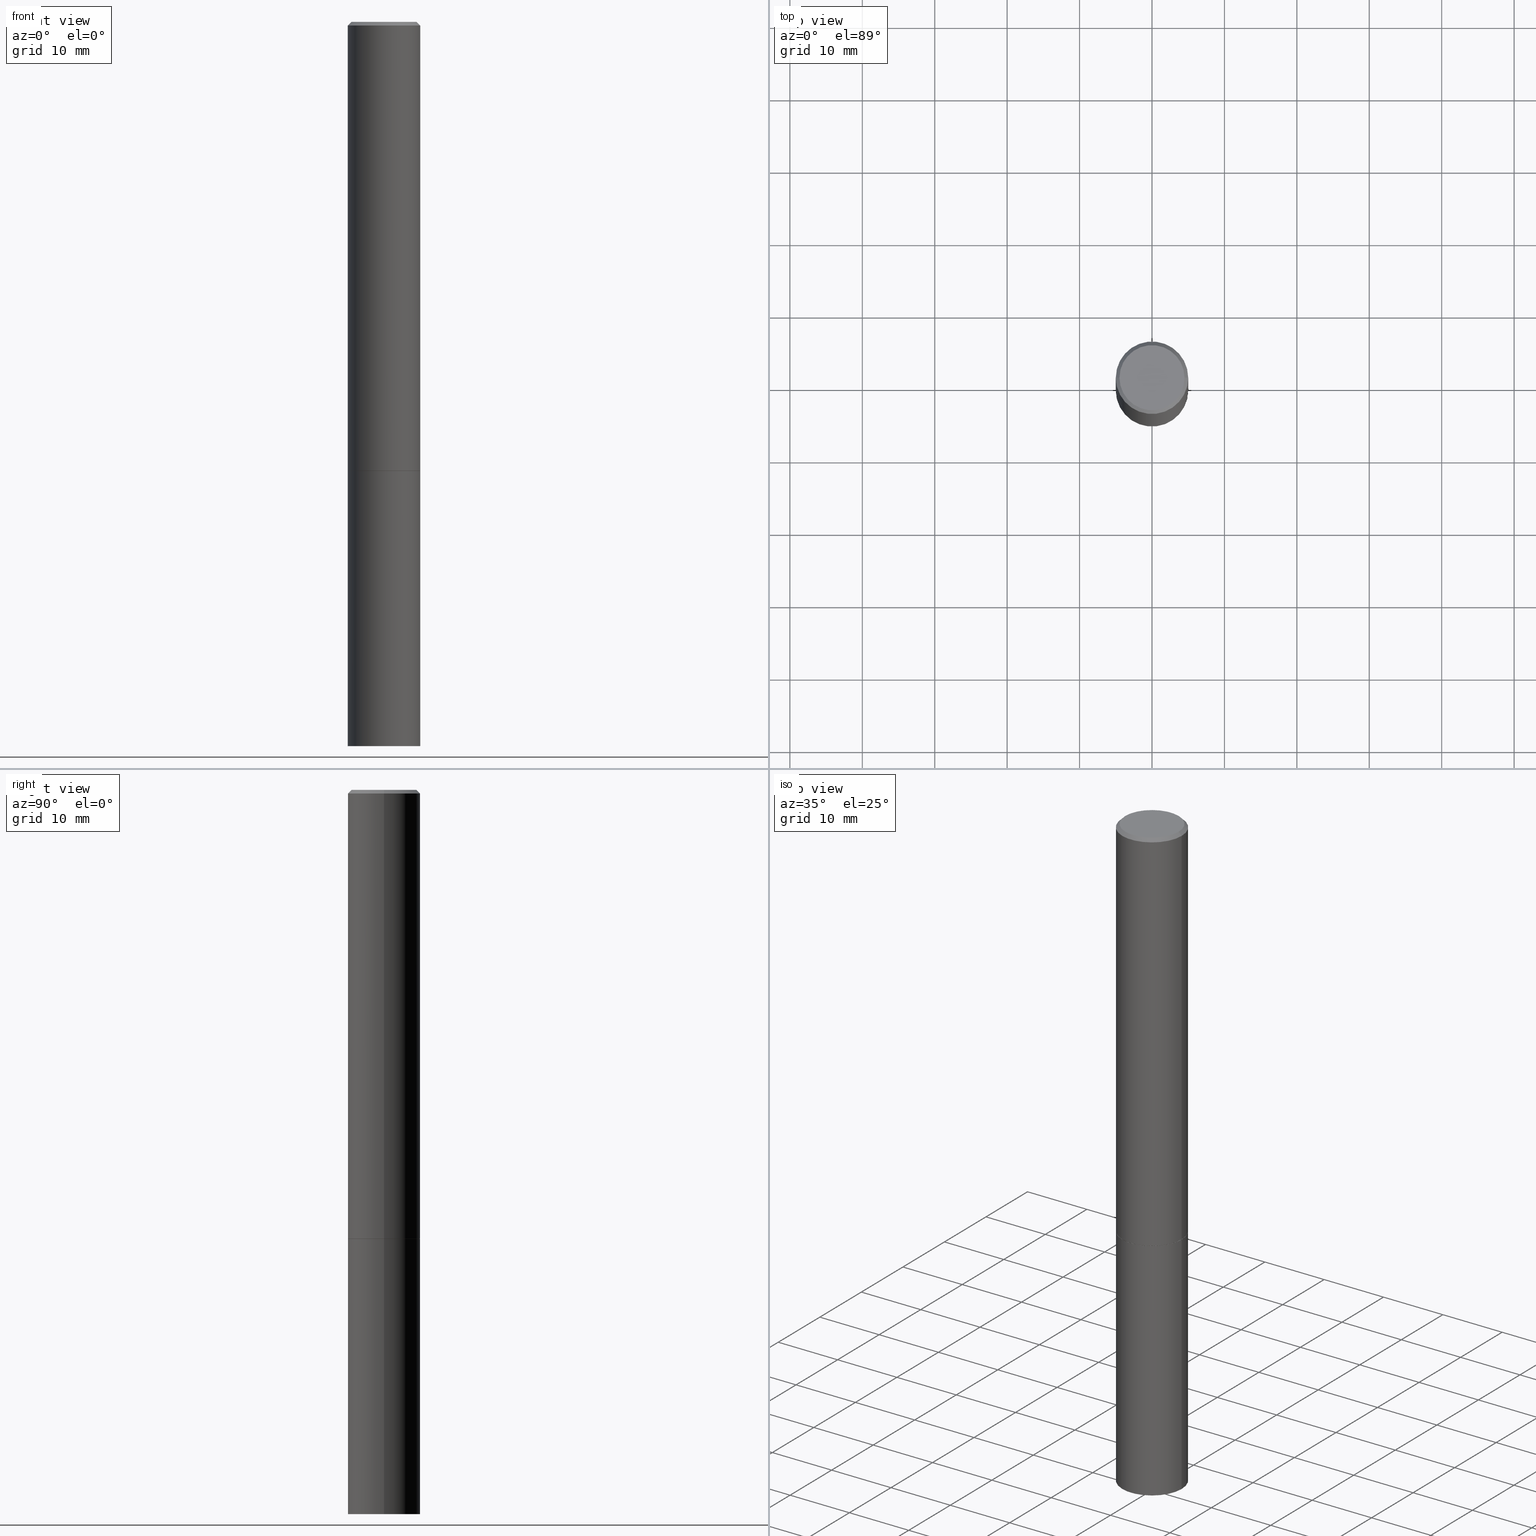
[diagram: canonical four-view strip — front | top / right | iso, engineering-drawing reading convention]
A machine part, canonical four-view strip (front | top / right | iso — engineering-drawing reading convention). The complete STEP part file that produces these views, byte-faithful:
ISO-10303-21;
HEADER;
FILE_DESCRIPTION (( 'STEP AP203' ),
    '1' );
FILE_NAME ('49419.STEP',
    '2024-02-28T20:01:23',
    ( '' ),
    ( '' ),
    'SwSTEP 2.0',
    'SolidWorks 2023',
    '' );
FILE_SCHEMA (( 'CONFIG_CONTROL_DESIGN' ));
ENDSEC;

DATA;
#1 = CARTESIAN_POINT ( 'NONE',  ( 5.966699340211114556E-29, -8.518865318643389958E-15, -2.439899999999999736 ) ) ;
#2 = AXIS2_PLACEMENT_3D ( 'NONE', #78, #16, #188 ) ;
#3 = CARTESIAN_POINT ( 'NONE',  ( 5.969144809017300159E-29, -8.522356799982234543E-15, -2.440900000000000070 ) ) ;
#4 = UNCERTAINTY_MEASURE_WITH_UNIT (LENGTH_MEASURE( 1.000000000000000082E-05 ), #44, 'distance_accuracy_value', 'NONE');
#5 = DIRECTION ( 'NONE',  ( -2.445468806185136597E-29, 3.491481338843145583E-15, 1.000000000000000000 ) ) ;
#6 = CARTESIAN_POINT ( 'NONE',  ( 0.1968499999999996364, -1.420318657638186558E-15, -0.02000000000000002123 ) ) ;
#7 = ORIENTED_EDGE ( 'NONE', *, *, #104, .T. ) ;
#8 = EDGE_CURVE ( 'NONE', #283, #9, #231, .T. ) ;
#9 = VERTEX_POINT ( 'NONE', #83 ) ;
#10 = CC_DESIGN_APPROVAL ( #182, ( #155 ) ) ;
#11 = CARTESIAN_POINT ( 'NONE',  ( 0.1768499999999996464, -1.316798864272039577E-15, 4.268512490109333727E-18 ) ) ;
#12 =( NAMED_UNIT ( * ) PLANE_ANGLE_UNIT ( ) SI_UNIT ( $, .RADIAN. ) );
#13 = AXIS2_PLACEMENT_3D ( 'NONE', #301, #330, #329 ) ;
#14 = EDGE_CURVE ( 'NONE', #209, #23, #259, .T. ) ;
#15 = DIRECTION ( 'NONE',  ( 1.000000000000000000, -6.982962677686266711E-15, 0.000000000000000000 ) ) ;
#16 = DIRECTION ( 'NONE',  ( 2.438088387897960049E-29, -3.491481338843145188E-15, -1.000000000000000000 ) ) ;
#17 = MANIFOLD_SOLID_BREP ( 'Body-Move/Copy2[2]', #32 ) ;
#18 = CC_DESIGN_PERSON_AND_ORGANIZATION_ASSIGNMENT ( #333, #193, ( #349 ) ) ;
#19 = VECTOR ( 'NONE', #201, 39.37007874015748143 ) ;
#20 = DIRECTION ( 'NONE',  ( 2.445468806185136597E-29, -3.491481338843145583E-15, -1.000000000000000000 ) ) ;
#21 = AXIS2_PLACEMENT_3D ( 'NONE', #345, #324, #207 ) ;
#22 = ORIENTED_EDGE ( 'NONE', *, *, #356, .F. ) ;
#23 = VERTEX_POINT ( 'NONE', #361 ) ;
#24 = APPROVAL ( #171, 'UNSPECIFIED' ) ;
#25 = DIRECTION ( 'NONE',  ( -1.000000000000000000, 6.982962677686265922E-15, -4.876176775795935793E-29 ) ) ;
#26 = APPROVAL_PERSON_ORGANIZATION ( #340, #178, #173 ) ;
#27 = CARTESIAN_POINT ( 'NONE',  ( 4.890937612370278413E-31, -6.982962677686297772E-17, -0.02000000000000002123 ) ) ;
#28 = DIRECTION ( 'NONE',  ( 1.000000000000000000, -6.982962677686266711E-15, 4.876176775795935793E-29 ) ) ;
#29 = ADVANCED_FACE ( 'NONE', ( #335 ), #113, .F. ) ;
#30 = CARTESIAN_POINT ( 'NONE',  ( -0.1768499999999996464, 1.269851762937245083E-15, 4.268512490091652920E-18 ) ) ;
#31 = VERTEX_POINT ( 'NONE', #258 ) ;
#32 = CLOSED_SHELL ( 'NONE', ( #109, #200, #84, #51, #45, #254, #160, #29 ) ) ;
#33 = AXIS2_PLACEMENT_3D ( 'NONE', #1, #245, #15 ) ;
#34 = ORIENTED_EDGE ( 'NONE', *, *, #163, .T. ) ;
#35 = DIRECTION ( 'NONE',  ( -1.000000000000000000, 6.982962677686265922E-15, -4.876176775795935793E-29 ) ) ;
#36 = ORIENTED_EDGE ( 'NONE', *, *, #205, .T. ) ;
#37 = DIRECTION ( 'NONE',  ( -2.438088387897960049E-29, 3.491481338843145188E-15, 1.000000000000000000 ) ) ;
#38 = CARTESIAN_POINT ( 'NONE',  ( 4.890937612370278413E-31, -6.982962677686297772E-17, -0.02000000000000002123 ) ) ;
#39 = DESIGN_CONTEXT ( 'detailed design', #186, 'design' ) ;
#40 = DIRECTION ( 'NONE',  ( 1.000000000000000000, -6.982962677686266711E-15, 0.000000000000000000 ) ) ;
#41 = EDGE_CURVE ( 'NONE', #86, #23, #234, .T. ) ;
#42 = CARTESIAN_POINT ( 'NONE',  ( 9.627810689950883669E-29, -1.374596203102546341E-14, -3.937000000000000277 ) ) ;
#43 = DIRECTION ( 'NONE',  ( -2.445468806185136597E-29, 3.491481338843145583E-15, 1.000000000000000000 ) ) ;
#44 =( CONVERSION_BASED_UNIT ( 'INCH', #102 ) LENGTH_UNIT ( ) NAMED_UNIT ( #148 ) );
#45 = ADVANCED_FACE ( 'NONE', ( #255 ), #194, .T. ) ;
#46 = CONICAL_SURFACE ( 'NONE', #99, 0.1958499999999999963, 0.7853981633972946241 ) ;
#47 = CC_DESIGN_SECURITY_CLASSIFICATION ( #313, ( #349 ) ) ;
#48 = ORGANIZATION ( 'UNSPECIFIED', 'UNSPECIFIED', '' ) ;
#49 = PERSON_AND_ORGANIZATION ( #138, #48 ) ;
#50 = APPROVAL_DATE_TIME ( #196, #182 ) ;
#51 = ADVANCED_FACE ( 'NONE', ( #79 ), #124, .T. ) ;
#52 = ORIENTED_EDGE ( 'NONE', *, *, #243, .F. ) ;
#53 = ORIENTED_EDGE ( 'NONE', *, *, #334, .T. ) ;
#54 = CIRCLE ( 'NONE', #21, 0.1968500000000000250 ) ;
#55 = COORDINATED_UNIVERSAL_TIME_OFFSET ( 5, 0, .BEHIND. ) ;
#56 = ORIENTED_EDGE ( 'NONE', *, *, #293, .F. ) ;
#57 = CARTESIAN_POINT ( 'NONE',  ( 5.969144809017299038E-29, -8.522356799982232966E-15, -2.440900000000000070 ) ) ;
#58 = EDGE_LOOP ( 'NONE', ( #36, #344, #172, #179 ) ) ;
#59 = FACE_OUTER_BOUND ( 'NONE', #143, .T. ) ;
#60 = VERTEX_POINT ( 'NONE', #108 ) ;
#61 = PRODUCT_DEFINITION_SHAPE ( 'NONE', 'NONE',  #155 ) ;
#62 = ORIENTED_EDGE ( 'NONE', *, *, #213, .F. ) ;
#63 = DIRECTION ( 'NONE',  ( -2.445468806185136877E-29, 3.491481338843145188E-15, 1.000000000000000000 ) ) ;
#64 = VERTEX_POINT ( 'NONE', #192 ) ;
#65 = AXIS2_PLACEMENT_3D ( 'NONE', #203, #261, #350 ) ;
#66 = CARTESIAN_POINT ( 'NONE',  ( 1.374596203102637849E-15, 0.1968499999999862582, -3.937000000000000721 ) ) ;
#67 = VERTEX_POINT ( 'NONE', #303 ) ;
#68 = ADVANCED_FACE ( 'NONE', ( #80 ), #363, .T. ) ;
#69 = LINE ( 'NONE', #341, #137 ) ;
#70 = EDGE_LOOP ( 'NONE', ( #230, #347 ) ) ;
#71 = PERSON_AND_ORGANIZATION ( #138, #48 ) ;
#72 = AXIS2_PLACEMENT_3D ( 'NONE', #57, #5, #322 ) ;
#73 = PLANE ( 'NONE',  #2 ) ;
#74 = CARTESIAN_POINT ( 'NONE',  ( 4.890937612370278413E-31, -6.982962677686297772E-17, -0.02000000000000002123 ) ) ;
#75 = PERSON_AND_ORGANIZATION ( #138, #48 ) ;
#76 = AXIS2_PLACEMENT_3D ( 'NONE', #229, #311, #278 ) ;
#77 = EDGE_CURVE ( 'NONE', #60, #31, #312, .T. ) ;
#78 = CARTESIAN_POINT ( 'NONE',  ( 1.374596203102601167E-15, 0.1968499999999914762, -2.440900000000000514 ) ) ;
#79 = FACE_OUTER_BOUND ( 'NONE', #280, .T. ) ;
#80 = FACE_OUTER_BOUND ( 'NONE', #139, .T. ) ;
#81 = COORDINATED_UNIVERSAL_TIME_OFFSET ( 5, 0, .BEHIND. ) ;
#82 = AXIS2_PLACEMENT_3D ( 'NONE', #176, #237, #28 ) ;
#83 = CARTESIAN_POINT ( 'NONE',  ( 0.1968500000000000527, -9.893461521745931567E-15, -2.439899999999999736 ) ) ;
#84 = ADVANCED_FACE ( 'NONE', ( #118 ), #168, .T. ) ;
#85 = PERSON_AND_ORGANIZATION_ROLE ( 'classification_officer' ) ;
#86 = VERTEX_POINT ( 'NONE', #30 ) ;
#87 = EDGE_LOOP ( 'NONE', ( #289, #7, #150, #240 ) ) ;
#88 = CC_DESIGN_DATE_AND_TIME_ASSIGNMENT ( #360, #140, ( #155 ) ) ;
#89 = LINE ( 'NONE', #147, #225 ) ;
#90 = CC_DESIGN_APPROVAL ( #178, ( #349 ) ) ;
#91 = FACE_OUTER_BOUND ( 'NONE', #177, .T. ) ;
#92 = DIRECTION ( 'NONE',  ( -2.445468806185136597E-29, 3.491481338843145583E-15, 1.000000000000000000 ) ) ;
#93 = CARTESIAN_POINT ( 'NONE',  ( 5.969144809017300159E-29, -8.522356799982234543E-15, -2.440900000000000070 ) ) ;
#94 = EDGE_CURVE ( 'NONE', #31, #60, #249, .T. ) ;
#95 = ADVANCED_BREP_SHAPE_REPRESENTATION ( '49419', ( #274, #17, #13 ), #328 ) ;
#96 = DIRECTION ( 'NONE',  ( -2.445468806185136597E-29, 3.491481338843145583E-15, 1.000000000000000000 ) ) ;
#97 = ORIENTED_EDGE ( 'NONE', *, *, #248, .T. ) ;
#98 = DIRECTION ( 'NONE',  ( -2.445468806185136597E-29, 3.491481338843145583E-15, 1.000000000000000000 ) ) ;
#99 = AXIS2_PLACEMENT_3D ( 'NONE', #114, #96, #288 ) ;
#100 = LOCAL_TIME ( 15, 1, 23.00000000000000000, #55 ) ;
#101 = PERSON_AND_ORGANIZATION ( #138, #48 ) ;
#102 = LENGTH_MEASURE_WITH_UNIT ( LENGTH_MEASURE( 0.02539999999999999897 ), #331 );
#103 = CALENDAR_DATE ( 2024, 28, 2 ) ;
#104 = EDGE_CURVE ( 'NONE', #67, #283, #116, .T. ) ;
#105 = AXIS2_PLACEMENT_3D ( 'NONE', #136, #110, #167 ) ;
#106 = LOCAL_TIME ( 15, 1, 23.00000000000000000, #260 ) ;
#107 = APPROVAL_DATE_TIME ( #132, #178 ) ;
#108 = CARTESIAN_POINT ( 'NONE',  ( 0.1968500000000000250, -9.896953003084774574E-15, -2.440900000000000070 ) ) ;
#109 = ADVANCED_FACE ( 'NONE', ( #174 ), #46, .T. ) ;
#110 = DIRECTION ( 'NONE',  ( -2.445468806185136597E-29, 3.491481338843145583E-15, 1.000000000000000000 ) ) ;
#111 = CIRCLE ( 'NONE', #220, 0.1768499999999996464 ) ;
#112 = APPROVAL_ROLE ( '' ) ;
#113 = PLANE ( 'NONE',  #210 ) ;
#114 = CARTESIAN_POINT ( 'NONE',  ( 5.969144809017300159E-29, -8.522356799982234543E-15, -2.440900000000000070 ) ) ;
#115 = CYLINDRICAL_SURFACE ( 'NONE', #82, 0.1968499999999998307 ) ;
#116 = CIRCLE ( 'NONE', #326, 0.1958499999999999963 ) ;
#117 = AXIS2_PLACEMENT_3D ( 'NONE', #299, #43, #277 ) ;
#118 = FACE_OUTER_BOUND ( 'NONE', #166, .T. ) ;
#119 = DIRECTION ( 'NONE',  ( -2.445468806185136877E-29, 3.491481338843145188E-15, 1.000000000000000000 ) ) ;
#120 = CC_DESIGN_PERSON_AND_ORGANIZATION_ASSIGNMENT ( #75, #228, ( #349 ) ) ;
#121 = ORIENTED_EDGE ( 'NONE', *, *, #285, .T. ) ;
#122 = DIRECTION ( 'NONE',  ( 0.7071067811865469066, -7.319954787623254468E-15, -0.7071067811865481278 ) ) ;
#123 = EDGE_LOOP ( 'NONE', ( #265, #22 ) ) ;
#124 = CONICAL_SURFACE ( 'NONE', #332, 0.1968499999999996364, 0.7853981633974473908 ) ;
#125 = APPLICATION_PROTOCOL_DEFINITION ( 'international standard', 'config_control_design', 1994, #222 ) ;
#126 = CC_DESIGN_PERSON_AND_ORGANIZATION_ASSIGNMENT ( #49, #85, ( #313 ) ) ;
#127 = DIRECTION ( 'NONE',  ( -2.445468806185136597E-29, 3.491481338843145583E-15, 1.000000000000000000 ) ) ;
#128 = MECHANICAL_CONTEXT ( 'NONE', #222, 'mechanical' ) ;
#129 = CIRCLE ( 'NONE', #337, 0.1958499999999999963 ) ;
#130 = DIRECTION ( 'NONE',  ( -2.445468806185136597E-29, 3.491481338843145583E-15, 1.000000000000000000 ) ) ;
#131 = DIRECTION ( 'NONE',  ( -2.445468806185136597E-29, 3.491481338843145583E-15, 1.000000000000000000 ) ) ;
#132 = DATE_AND_TIME ( #103, #106 ) ;
#133 = APPROVAL_PERSON_ORGANIZATION ( #315, #24, #263 ) ;
#134 = ORIENTED_EDGE ( 'NONE', *, *, #351, .F. ) ;
#135 = DIRECTION ( 'NONE',  ( 0.7071067811864388819, -2.468850131081119129E-15, 0.7071067811866561525 ) ) ;
#136 = CARTESIAN_POINT ( 'NONE',  ( 0.000000000000000000, 0.000000000000000000, 0.000000000000000000 ) ) ;
#137 = VECTOR ( 'NONE', #119, 39.37007874015748143 ) ;
#138 = PERSON ( 'UNSPECIFIED', 'UNSPECIFIED', 'UNSPECIFIED', ('UNSPECIFIED'), ('UNSPECIFIED'), ('UNSPECIFIED') ) ;
#139 = EDGE_LOOP ( 'NONE', ( #62, #271, #319, #292 ) ) ;
#140 = DATE_TIME_ROLE ( 'creation_date' ) ;
#141 = DIRECTION ( 'NONE',  ( 2.438088387897960049E-29, -3.491481338843145188E-15, -1.000000000000000000 ) ) ;
#142 = CALENDAR_DATE ( 2024, 28, 2 ) ;
#143 = EDGE_LOOP ( 'NONE', ( #242, #336 ) ) ;
#144 = DIRECTION ( 'NONE',  ( 1.000000000000000000, -6.982962677686262766E-15, 0.000000000000000000 ) ) ;
#145 = ORIENTED_EDGE ( 'NONE', *, *, #8, .F. ) ;
#146 = EDGE_CURVE ( 'NONE', #153, #60, #264, .T. ) ;
#147 = CARTESIAN_POINT ( 'NONE',  ( 0.1968499999999998307, -1.374596203102540425E-15, 9.598753983154291049E-30 ) ) ;
#148 = DIMENSIONAL_EXPONENTS ( 1.000000000000000000, 0.000000000000000000, 0.000000000000000000, 0.000000000000000000, 0.000000000000000000, 0.000000000000000000, 0.000000000000000000 ) ;
#149 = DIRECTION ( 'NONE',  ( -2.445468806185136597E-29, 3.491481338843145583E-15, 1.000000000000000000 ) ) ;
#150 = ORIENTED_EDGE ( 'NONE', *, *, #8, .T. ) ;
#151 = ORIENTED_EDGE ( 'NONE', *, *, #226, .T. ) ;
#152 = CARTESIAN_POINT ( 'NONE',  ( 0.1968500000000000250, -1.374596203102541608E-15, 9.598753983154300858E-30 ) ) ;
#153 = VERTEX_POINT ( 'NONE', #348 ) ;
#154 = AXIS2_PLACEMENT_3D ( 'NONE', #282, #92, #316 ) ;
#155 = PRODUCT_DEFINITION ( 'UNKNOWN', '', #349, #39 ) ;
#156 = CONICAL_SURFACE ( 'NONE', #65, 0.1958499999999999963, 0.7853981633972946241 ) ;
#157 = CARTESIAN_POINT ( 'NONE',  ( 4.890937612370278413E-31, -6.982962677686297772E-17, -0.02000000000000002123 ) ) ;
#158 = APPROVAL_STATUS ( 'not_yet_approved' ) ;
#159 = CLOSED_SHELL ( 'NONE', ( #346, #221, #320, #68 ) ) ;
#160 = ADVANCED_FACE ( 'NONE', ( #59 ), #343, .F. ) ;
#161 = CALENDAR_DATE ( 2024, 28, 2 ) ;
#162 = ORIENTED_EDGE ( 'NONE', *, *, #226, .F. ) ;
#163 = EDGE_CURVE ( 'NONE', #283, #67, #129, .T. ) ;
#164 = AXIS2_PLACEMENT_3D ( 'NONE', #38, #266, #314 ) ;
#165 = AXIS2_PLACEMENT_3D ( 'NONE', #66, #141, #35 ) ;
#166 = EDGE_LOOP ( 'NONE', ( #134, #97, #325, #323 ) ) ;
#167 = DIRECTION ( 'NONE',  ( 1.000000000000000000, -6.982962677686265922E-15, 4.876176775795935793E-29 ) ) ;
#168 = CONICAL_SURFACE ( 'NONE', #164, 0.1968499999999996364, 0.7853981633974473908 ) ;
#169 = CIRCLE ( 'NONE', #279, 0.1768499999999996464 ) ;
#170 = ORIENTED_EDGE ( 'NONE', *, *, #334, .F. ) ;
#171 = APPROVAL_STATUS ( 'not_yet_approved' ) ;
#172 = ORIENTED_EDGE ( 'NONE', *, *, #77, .F. ) ;
#173 = APPROVAL_ROLE ( '' ) ;
#174 = FACE_OUTER_BOUND ( 'NONE', #175, .T. ) ;
#175 = EDGE_LOOP ( 'NONE', ( #34, #236, #223, #145 ) ) ;
#176 = CARTESIAN_POINT ( 'NONE',  ( 0.000000000000000000, 0.000000000000000000, 0.000000000000000000 ) ) ;
#177 = EDGE_LOOP ( 'NONE', ( #212, #267, #56, #162 ) ) ;
#178 = APPROVAL ( #202, 'UNSPECIFIED' ) ;
#179 = ORIENTED_EDGE ( 'NONE', *, *, #146, .F. ) ;
#180 = FACE_OUTER_BOUND ( 'NONE', #123, .T. ) ;
#181 = CIRCLE ( 'NONE', #276, 0.1968499999999996364 ) ;
#182 = APPROVAL ( #158, 'UNSPECIFIED' ) ;
#183 = PLANE ( 'NONE',  #165 ) ;
#184 = ORIENTED_EDGE ( 'NONE', *, *, #41, .T. ) ;
#185 = FACE_OUTER_BOUND ( 'NONE', #238, .T. ) ;
#186 = APPLICATION_CONTEXT ( 'configuration controlled 3d designs of mechanical parts and assemblies' ) ;
#187 = LINE ( 'NONE', #327, #338 ) ;
#188 = DIRECTION ( 'NONE',  ( -1.000000000000000000, 6.982962677686265922E-15, -4.876176775795935793E-29 ) ) ;
#189 = CC_DESIGN_PERSON_AND_ORGANIZATION_ASSIGNMENT ( #71, #272, ( #208 ) ) ;
#190 = VECTOR ( 'NONE', #307, 39.37007874015748143 ) ;
#191 = PERSON_AND_ORGANIZATION_ROLE ( 'creator' ) ;
#192 = CARTESIAN_POINT ( 'NONE',  ( -0.1968500000000000250, -9.735456040160091980E-15, -3.937000000000000277 ) ) ;
#193 = PERSON_AND_ORGANIZATION_ROLE ( 'design_supplier' ) ;
#194 = CYLINDRICAL_SURFACE ( 'NONE', #76, 0.1968499999999998307 ) ;
#195 = APPROVAL_DATE_TIME ( #253, #24 ) ;
#196 = DATE_AND_TIME ( #233, #257 ) ;
#197 = DIRECTION ( 'NONE',  ( 2.438088387897960049E-29, -3.491481338843145188E-15, -1.000000000000000000 ) ) ;
#198 = ORIENTED_EDGE ( 'NONE', *, *, #94, .T. ) ;
#199 = COORDINATED_UNIVERSAL_TIME_OFFSET ( 5, 0, .BEHIND. ) ;
#200 = ADVANCED_FACE ( 'NONE', ( #91 ), #115, .T. ) ;
#201 = DIRECTION ( 'NONE',  ( -0.7071067811865469066, 2.468850131082250355E-15, -0.7071067811865481278 ) ) ;
#202 = APPROVAL_STATUS ( 'not_yet_approved' ) ;
#203 = CARTESIAN_POINT ( 'NONE',  ( 5.969144809017300159E-29, -8.522356799982234543E-15, -2.440900000000000070 ) ) ;
#204 = DATE_TIME_ROLE ( 'classification_date' ) ;
#205 = EDGE_CURVE ( 'NONE', #153, #64, #54, .T. ) ;
#206 = ORIENTED_EDGE ( 'NONE', *, *, #248, .F. ) ;
#207 = DIRECTION ( 'NONE',  ( 1.000000000000000000, -6.982962677686267499E-15, 0.000000000000000000 ) ) ;
#208 = PRODUCT ( '49419', '49419', '', ( #128 ) ) ;
#209 = VERTEX_POINT ( 'NONE', #318 ) ;
#210 = AXIS2_PLACEMENT_3D ( 'NONE', #227, #197, #25 ) ;
#211 = CARTESIAN_POINT ( 'NONE',  ( 0.1968499999999996364, -1.420318657638186558E-15, -0.02000000000000002123 ) ) ;
#212 = ORIENTED_EDGE ( 'NONE', *, *, #281, .T. ) ;
#213 = EDGE_CURVE ( 'NONE', #64, #31, #69, .T. ) ;
#214 = DIRECTION ( 'NONE',  ( 1.000000000000000000, -6.982962677686265922E-15, 4.876176775795935793E-29 ) ) ;
#215 = VERTEX_POINT ( 'NONE', #211 ) ;
#216 = DIRECTION ( 'NONE',  ( 1.000000000000000000, -6.982962677686267499E-15, 0.000000000000000000 ) ) ;
#217 = ORIENTED_EDGE ( 'NONE', *, *, #14, .F. ) ;
#218 = DIRECTION ( 'NONE',  ( 1.000000000000000000, -6.982962677686266711E-15, 4.875932113059887537E-29 ) ) ;
#219 = CC_DESIGN_APPROVAL ( #24, ( #313 ) ) ;
#220 = AXIS2_PLACEMENT_3D ( 'NONE', #352, #131, #218 ) ;
#221 = ADVANCED_FACE ( 'NONE', ( #180 ), #183, .T. ) ;
#222 = APPLICATION_CONTEXT ( 'configuration controlled 3d designs of mechanical parts and assemblies' ) ;
#223 = ORIENTED_EDGE ( 'NONE', *, *, #281, .F. ) ;
#224 = FACE_OUTER_BOUND ( 'NONE', #58, .T. ) ;
#225 = VECTOR ( 'NONE', #295, 39.37007874015748143 ) ;
#226 = EDGE_CURVE ( 'NONE', #9, #215, #89, .T. ) ;
#227 = CARTESIAN_POINT ( 'NONE',  ( 1.234936949548813631E-15, 0.1768499999999996464, -6.153342185293588703E-16 ) ) ;
#228 = PERSON_AND_ORGANIZATION_ROLE ( 'creator' ) ;
#229 = CARTESIAN_POINT ( 'NONE',  ( 0.000000000000000000, 0.000000000000000000, 0.000000000000000000 ) ) ;
#230 = ORIENTED_EDGE ( 'NONE', *, *, #243, .T. ) ;
#231 = LINE ( 'NONE', #339, #364 ) ;
#232 = CC_DESIGN_PERSON_AND_ORGANIZATION_ASSIGNMENT ( #309, #191, ( #155 ) ) ;
#233 = CALENDAR_DATE ( 2024, 28, 2 ) ;
#234 = LINE ( 'NONE', #365, #19 ) ;
#235 = LINE ( 'NONE', #6, #290 ) ;
#236 = ORIENTED_EDGE ( 'NONE', *, *, #310, .T. ) ;
#237 = DIRECTION ( 'NONE',  ( -2.445468806185136597E-29, 3.491481338843145583E-15, 1.000000000000000000 ) ) ;
#238 = EDGE_LOOP ( 'NONE', ( #262, #198 ) ) ;
#239 = CARTESIAN_POINT ( 'NONE',  ( 5.969144809017300159E-29, -8.522356799982234543E-15, -2.440900000000000070 ) ) ;
#240 = ORIENTED_EDGE ( 'NONE', *, *, #285, .F. ) ;
#241 = FACE_OUTER_BOUND ( 'NONE', #87, .T. ) ;
#242 = ORIENTED_EDGE ( 'NONE', *, *, #163, .F. ) ;
#243 = EDGE_CURVE ( 'NONE', #86, #304, #169, .T. ) ;
#244 = DIRECTION ( 'NONE',  ( 1.000000000000000000, -6.982962677686266711E-15, 0.000000000000000000 ) ) ;
#245 = DIRECTION ( 'NONE',  ( -2.445468806185136597E-29, 3.491481338843145583E-15, 1.000000000000000000 ) ) ;
#246 = VECTOR ( 'NONE', #63, 39.37007874015748143 ) ;
#247 = DIRECTION ( 'NONE',  ( -0.7071067811864388819, 7.493145998869961307E-15, 0.7071067811866561525 ) ) ;
#248 = EDGE_CURVE ( 'NONE', #304, #215, #235, .T. ) ;
#249 = CIRCLE ( 'NONE', #72, 0.1968500000000000250 ) ;
#250 = CIRCLE ( 'NONE', #33, 0.1968500000000000527 ) ;
#251 = CARTESIAN_POINT ( 'NONE',  ( -0.1968499999999998307, 1.398703375343756013E-15, -9.682923725166775270E-30 ) ) ;
#252 = DIRECTION ( 'NONE',  ( -1.000000000000000000, 6.982962677686266711E-15, 0.000000000000000000 ) ) ;
#253 = DATE_AND_TIME ( #286, #100 ) ;
#254 = ADVANCED_FACE ( 'NONE', ( #241 ), #156, .T. ) ;
#255 = FACE_OUTER_BOUND ( 'NONE', #317, .T. ) ;
#256 = SHAPE_DEFINITION_REPRESENTATION ( #61, #95 ) ;
#257 = LOCAL_TIME ( 15, 1, 23.00000000000000000, #81 ) ;
#258 = CARTESIAN_POINT ( 'NONE',  ( -0.1968500000000000250, -9.735456040160091980E-15, -2.440900000000000070 ) ) ;
#259 = LINE ( 'NONE', #251, #190 ) ;
#260 = COORDINATED_UNIVERSAL_TIME_OFFSET ( 5, 0, .BEHIND. ) ;
#261 = DIRECTION ( 'NONE',  ( -2.445468806185136597E-29, 3.491481338843145583E-15, 1.000000000000000000 ) ) ;
#262 = ORIENTED_EDGE ( 'NONE', *, *, #77, .T. ) ;
#263 = APPROVAL_ROLE ( '' ) ;
#264 = LINE ( 'NONE', #152, #246 ) ;
#265 = ORIENTED_EDGE ( 'NONE', *, *, #205, .F. ) ;
#266 = DIRECTION ( 'NONE',  ( 2.445468806185136597E-29, -3.491481338843145583E-15, -1.000000000000000000 ) ) ;
#267 = ORIENTED_EDGE ( 'NONE', *, *, #14, .T. ) ;
#268 = DIRECTION ( 'NONE',  ( 1.000000000000000000, -6.982962677686266711E-15, 4.875932113059887537E-29 ) ) ;
#269 = DIRECTION ( 'NONE',  ( -2.445468806185136597E-29, 3.491481338843145583E-15, 1.000000000000000000 ) ) ;
#270 = AXIS2_PLACEMENT_3D ( 'NONE', #42, #98, #216 ) ;
#271 = ORIENTED_EDGE ( 'NONE', *, *, #356, .T. ) ;
#272 = PERSON_AND_ORGANIZATION_ROLE ( 'design_owner' ) ;
#273 = DIRECTION ( 'NONE',  ( 1.000000000000000000, -6.982962677686265922E-15, 4.876176775795935793E-29 ) ) ;
#274 = MANIFOLD_SOLID_BREP ( 'Body-Move/Copy2[1]', #159 ) ;
#275 = DIRECTION ( 'NONE',  ( -2.445468806185136597E-29, 3.491481338843145583E-15, 1.000000000000000000 ) ) ;
#276 = AXIS2_PLACEMENT_3D ( 'NONE', #157, #127, #40 ) ;
#277 = DIRECTION ( 'NONE',  ( 1.000000000000000000, -6.982962677686266711E-15, 0.000000000000000000 ) ) ;
#278 = DIRECTION ( 'NONE',  ( 1.000000000000000000, -6.982962677686266711E-15, 4.876176775795935793E-29 ) ) ;
#279 = AXIS2_PLACEMENT_3D ( 'NONE', #294, #149, #268 ) ;
#280 = EDGE_LOOP ( 'NONE', ( #206, #52, #184, #53 ) ) ;
#281 = EDGE_CURVE ( 'NONE', #9, #209, #250, .T. ) ;
#282 = CARTESIAN_POINT ( 'NONE',  ( 5.969144809017299038E-29, -8.522356799982232966E-15, -2.440900000000000070 ) ) ;
#283 = VERTEX_POINT ( 'NONE', #355 ) ;
#284 = CIRCLE ( 'NONE', #270, 0.1968500000000000250 ) ;
#285 = EDGE_CURVE ( 'NONE', #209, #9, #354, .T. ) ;
#286 = CALENDAR_DATE ( 2024, 28, 2 ) ;
#287 = DIRECTION ( 'NONE',  ( -2.445468806185136597E-29, 3.491481338843145583E-15, 1.000000000000000000 ) ) ;
#288 = DIRECTION ( 'NONE',  ( 1.000000000000000000, -6.982962677686262766E-15, 0.000000000000000000 ) ) ;
#289 = ORIENTED_EDGE ( 'NONE', *, *, #310, .F. ) ;
#290 = VECTOR ( 'NONE', #122, 39.37007874015748143 ) ;
#291 = DIRECTION ( 'NONE',  ( 1.000000000000000000, -6.982962677686262766E-15, 0.000000000000000000 ) ) ;
#292 = ORIENTED_EDGE ( 'NONE', *, *, #94, .F. ) ;
#293 = EDGE_CURVE ( 'NONE', #215, #23, #342, .T. ) ;
#294 = CARTESIAN_POINT ( 'NONE',  ( -1.043851414335219820E-46, 1.490343170380447200E-32, 4.268512490100411279E-18 ) ) ;
#295 = DIRECTION ( 'NONE',  ( -2.445468806185136877E-29, 3.491481338843145188E-15, 1.000000000000000000 ) ) ;
#296 =( NAMED_UNIT ( * ) SI_UNIT ( $, .STERADIAN. ) SOLID_ANGLE_UNIT ( ) );
#297 = AXIS2_PLACEMENT_3D ( 'NONE', #74, #275, #244 ) ;
#298 = CARTESIAN_POINT ( 'NONE',  ( 0.000000000000000000, 0.000000000000000000, 0.000000000000000000 ) ) ;
#299 = CARTESIAN_POINT ( 'NONE',  ( 5.966699340211114556E-29, -8.518865318643389958E-15, -2.439899999999999736 ) ) ;
#300 = LOCAL_TIME ( 15, 1, 23.00000000000000000, #302 ) ;
#301 = CARTESIAN_POINT ( 'NONE',  ( 0.000000000000000000, 0.000000000000000000, 0.000000000000000000 ) ) ;
#302 = COORDINATED_UNIVERSAL_TIME_OFFSET ( 5, 0, .BEHIND. ) ;
#303 = CARTESIAN_POINT ( 'NONE',  ( -0.1958499999999999963, -7.125460397647855362E-15, -2.440900000000000070 ) ) ;
#304 = VERTEX_POINT ( 'NONE', #11 ) ;
#305 = AXIS2_PLACEMENT_3D ( 'NONE', #93, #37, #214 ) ;
#306 = AXIS2_PLACEMENT_3D ( 'NONE', #298, #130, #273 ) ;
#307 = DIRECTION ( 'NONE',  ( -2.445468806185136877E-29, 3.491481338843145188E-15, 1.000000000000000000 ) ) ;
#308 = DATE_AND_TIME ( #142, #358 ) ;
#309 = PERSON_AND_ORGANIZATION ( #138, #48 ) ;
#310 = EDGE_CURVE ( 'NONE', #67, #209, #187, .T. ) ;
#311 = DIRECTION ( 'NONE',  ( -2.445468806185136597E-29, 3.491481338843145583E-15, 1.000000000000000000 ) ) ;
#312 = CIRCLE ( 'NONE', #154, 0.1968500000000000250 ) ;
#313 = SECURITY_CLASSIFICATION ( '', '', #362 ) ;
#314 = DIRECTION ( 'NONE',  ( -1.000000000000000000, 6.982962677686266711E-15, 0.000000000000000000 ) ) ;
#315 = PERSON_AND_ORGANIZATION ( #138, #48 ) ;
#316 = DIRECTION ( 'NONE',  ( 1.000000000000000000, -6.982962677686262766E-15, 0.000000000000000000 ) ) ;
#317 = EDGE_LOOP ( 'NONE', ( #217, #121, #151, #170 ) ) ;
#318 = CARTESIAN_POINT ( 'NONE',  ( -0.1968500000000000527, -2.895644097366364896E-15, -2.439899999999999736 ) ) ;
#319 = ORIENTED_EDGE ( 'NONE', *, *, #146, .T. ) ;
#320 = ADVANCED_FACE ( 'NONE', ( #185 ), #73, .F. ) ;
#321 = APPROVAL_PERSON_ORGANIZATION ( #101, #182, #112 ) ;
#322 = DIRECTION ( 'NONE',  ( 1.000000000000000000, -6.982962677686262766E-15, 0.000000000000000000 ) ) ;
#323 = ORIENTED_EDGE ( 'NONE', *, *, #41, .F. ) ;
#324 = DIRECTION ( 'NONE',  ( -2.445468806185136597E-29, 3.491481338843145583E-15, 1.000000000000000000 ) ) ;
#325 = ORIENTED_EDGE ( 'NONE', *, *, #293, .T. ) ;
#326 = AXIS2_PLACEMENT_3D ( 'NONE', #239, #287, #144 ) ;
#327 = CARTESIAN_POINT ( 'NONE',  ( -0.1958499999999999963, -7.130758851996077764E-15, -2.440900000000000070 ) ) ;
#328 =( GEOMETRIC_REPRESENTATION_CONTEXT ( 3 ) GLOBAL_UNCERTAINTY_ASSIGNED_CONTEXT ( ( #4 ) ) GLOBAL_UNIT_ASSIGNED_CONTEXT ( ( #44, #12, #296 ) ) REPRESENTATION_CONTEXT ( 'NONE', 'WORKASPACE' ) );
#329 = DIRECTION ( 'NONE',  ( 1.000000000000000000, 0.000000000000000000, 0.000000000000000000 ) ) ;
#330 = DIRECTION ( 'NONE',  ( 0.000000000000000000, 0.000000000000000000, 1.000000000000000000 ) ) ;
#331 =( LENGTH_UNIT ( ) NAMED_UNIT ( * ) SI_UNIT ( $, .METRE. ) );
#332 = AXIS2_PLACEMENT_3D ( 'NONE', #27, #20, #252 ) ;
#333 = PERSON_AND_ORGANIZATION ( #138, #48 ) ;
#334 = EDGE_CURVE ( 'NONE', #23, #215, #181, .T. ) ;
#335 = FACE_OUTER_BOUND ( 'NONE', #70, .T. ) ;
#336 = ORIENTED_EDGE ( 'NONE', *, *, #104, .F. ) ;
#337 = AXIS2_PLACEMENT_3D ( 'NONE', #3, #269, #291 ) ;
#338 = VECTOR ( 'NONE', #247, 39.37007874015748143 ) ;
#339 = CARTESIAN_POINT ( 'NONE',  ( 0.1958499999999999963, -9.889970040407088560E-15, -2.440900000000000070 ) ) ;
#340 = PERSON_AND_ORGANIZATION ( #138, #48 ) ;
#341 = CARTESIAN_POINT ( 'NONE',  ( -0.1968500000000000250, 1.398703375343757393E-15, -9.682923725166783677E-30 ) ) ;
#342 = CIRCLE ( 'NONE', #297, 0.1968499999999996364 ) ;
#343 = PLANE ( 'NONE',  #305 ) ;
#344 = ORIENTED_EDGE ( 'NONE', *, *, #213, .T. ) ;
#345 = CARTESIAN_POINT ( 'NONE',  ( 9.627810689950883669E-29, -1.374596203102546341E-14, -3.937000000000000277 ) ) ;
#346 = ADVANCED_FACE ( 'NONE', ( #224 ), #357, .T. ) ;
#347 = ORIENTED_EDGE ( 'NONE', *, *, #351, .T. ) ;
#348 = CARTESIAN_POINT ( 'NONE',  ( 0.1968500000000000250, -1.512055823412800660E-14, -3.937000000000000277 ) ) ;
#349 = PRODUCT_DEFINITION_FORMATION_WITH_SPECIFIED_SOURCE ( 'ANY', '', #208, .NOT_KNOWN. ) ;
#350 = DIRECTION ( 'NONE',  ( 1.000000000000000000, -6.982962677686262766E-15, 0.000000000000000000 ) ) ;
#351 = EDGE_CURVE ( 'NONE', #304, #86, #111, .T. ) ;
#352 = CARTESIAN_POINT ( 'NONE',  ( -1.043851414335219820E-46, 1.490343170380447200E-32, 4.268512490100411279E-18 ) ) ;
#353 = APPLICATION_PROTOCOL_DEFINITION ( 'international standard', 'config_control_design', 1994, #186 ) ;
#354 = CIRCLE ( 'NONE', #117, 0.1968500000000000527 ) ;
#355 = CARTESIAN_POINT ( 'NONE',  ( 0.1958499999999999963, -9.889970040407088560E-15, -2.440900000000000070 ) ) ;
#356 = EDGE_CURVE ( 'NONE', #64, #153, #284, .T. ) ;
#357 = CYLINDRICAL_SURFACE ( 'NONE', #306, 0.1968500000000000250 ) ;
#358 = LOCAL_TIME ( 15, 1, 23.00000000000000000, #199 ) ;
#359 = CC_DESIGN_DATE_AND_TIME_ASSIGNMENT ( #308, #204, ( #313 ) ) ;
#360 = DATE_AND_TIME ( #161, #300 ) ;
#361 = CARTESIAN_POINT ( 'NONE',  ( -0.1968499999999996364, 1.304766576325675944E-15, -0.02000000000000002123 ) ) ;
#362 = SECURITY_CLASSIFICATION_LEVEL ( 'unclassified' ) ;
#363 = CYLINDRICAL_SURFACE ( 'NONE', #105, 0.1968500000000000250 ) ;
#364 = VECTOR ( 'NONE', #135, 39.37007874015748143 ) ;
#365 = CARTESIAN_POINT ( 'NONE',  ( -0.1968499999999996364, 1.304766576325675944E-15, -0.02000000000000002123 ) ) ;
#366 = PRODUCT_RELATED_PRODUCT_CATEGORY ( 'detail', '', ( #208 ) ) ;
ENDSEC;
END-ISO-10303-21;
